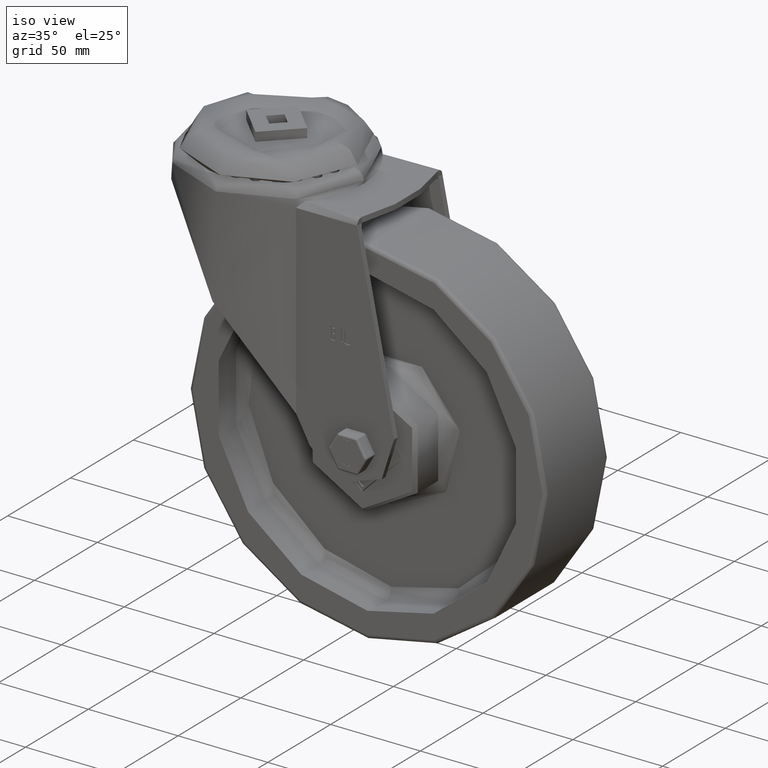
[diagram: clean part render]
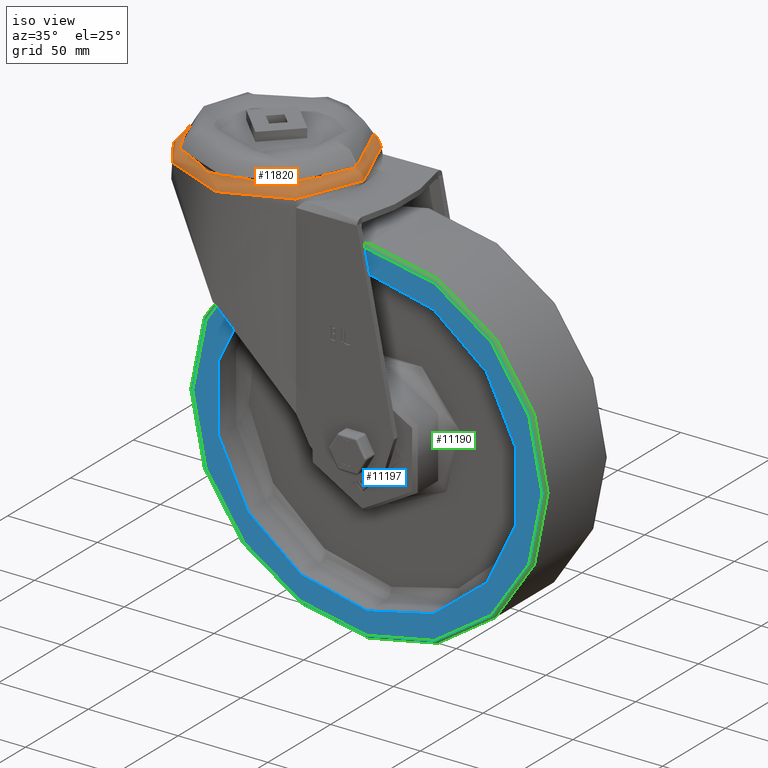
[diagram: same view with three faces highlighted in distinct colors, each labeled with its STEP entity id]
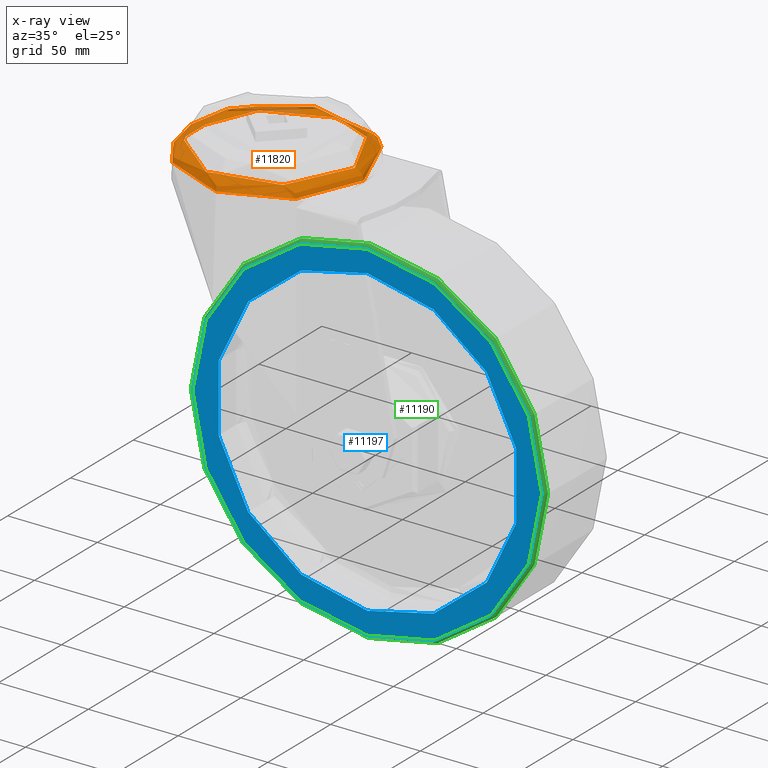
[diagram: x-ray of the same camera — body ghosted, the three highlighted faces saturated]
A machine part, iso view with three faces highlighted in distinct colors.
The next image is the same camera in x-ray (body ghosted, the three faces saturated) — at least one of them is partly hidden behind the body in this view.
Their STEP definitions:

[orange] entity #11820 — the highlighted toroidal blend (fillet) surface has major radius 43.5 mm and minor (blend) radius 5 mm.
#1678=TOROIDAL_SURFACE('',#13038,43.5,5.);
#2312=FACE_OUTER_BOUND('',#3128,.T.);
#3128=EDGE_LOOP('',(#10817,#10818,#10819,#10820));
#4999=CIRCLE('',#13028,48.5);
#5004=CIRCLE('',#13039,5.);
#5005=CIRCLE('',#13040,43.5);
#6053=VERTEX_POINT('',#27925);
#6060=VERTEX_POINT('',#27962);
#7649=EDGE_CURVE('',#6053,#6053,#4999,.T.);
#7663=EDGE_CURVE('',#6053,#6060,#5004,.T.);
#7664=EDGE_CURVE('',#6060,#6060,#5005,.T.);
#10817=ORIENTED_EDGE('',*,*,#7649,.T.);
#10818=ORIENTED_EDGE('',*,*,#7663,.T.);
#10819=ORIENTED_EDGE('',*,*,#7664,.T.);
#10820=ORIENTED_EDGE('',*,*,#7663,.F.);
#11820=ADVANCED_FACE('',(#2312),#1678,.T.);
#13028=AXIS2_PLACEMENT_3D('',#27927,#15654,#15655);
#13038=AXIS2_PLACEMENT_3D('',#27961,#15682,#15683);
#13039=AXIS2_PLACEMENT_3D('',#27963,#15684,#15685);
#13040=AXIS2_PLACEMENT_3D('',#27964,#15686,#15687);
#15654=DIRECTION('center_axis',(0.,0.,1.));
#15655=DIRECTION('ref_axis',(-1.,0.,0.));
#15682=DIRECTION('center_axis',(0.,0.,-1.));
#15683=DIRECTION('ref_axis',(-1.,0.,0.));
#15684=DIRECTION('center_axis',(-1.22464679914735E-16,-1.,0.));
#15685=DIRECTION('ref_axis',(1.,-1.22464679914735E-16,0.));
#15686=DIRECTION('center_axis',(0.,0.,-1.));
#15687=DIRECTION('ref_axis',(-1.,0.,0.));
#27925=CARTESIAN_POINT('',(48.5,5.93953697586466E-15,-6.));
#27927=CARTESIAN_POINT('Origin',(0.,0.,-6.));
#27961=CARTESIAN_POINT('Origin',(0.,0.,-6.));
#27962=CARTESIAN_POINT('',(43.5,-5.32721357629098E-15,-1.));
#27963=CARTESIAN_POINT('Origin',(43.5,-5.32721357629099E-15,-6.));
#27964=CARTESIAN_POINT('Origin',(0.,0.,-1.));

[blue] entity #11197 — the highlighted planar face has unit normal (0, -1, 0).
#1257=FACE_BOUND('',#2373,.T.);
#1399=PLANE('',#12100);
#1689=FACE_OUTER_BOUND('',#2372,.T.);
#2372=EDGE_LOOP('',(#7778));
#2373=EDGE_LOOP('',(#7779));
#4618=CIRCLE('',#12082,85.);
#4619=CIRCLE('',#12084,97.3622245668067);
#5020=VERTEX_POINT('',#15871);
#5021=VERTEX_POINT('',#15875);
#6110=EDGE_CURVE('',#5020,#5020,#4618,.T.);
#6111=EDGE_CURVE('',#5021,#5021,#4619,.T.);
#7778=ORIENTED_EDGE('',*,*,#6111,.T.);
#7779=ORIENTED_EDGE('',*,*,#6110,.F.);
#11197=ADVANCED_FACE('',(#1689,#1257),#1399,.T.);
#12082=AXIS2_PLACEMENT_3D('',#15873,#13113,#13114);
#12084=AXIS2_PLACEMENT_3D('',#15876,#13117,#13118);
#12100=AXIS2_PLACEMENT_3D('',#15928,#13151,#13152);
#13113=DIRECTION('center_axis',(0.,-1.,0.));
#13114=DIRECTION('ref_axis',(0.,0.,1.));
#13117=DIRECTION('center_axis',(0.,-1.,0.));
#13118=DIRECTION('ref_axis',(0.,0.,1.));
#13151=DIRECTION('center_axis',(0.,-1.,0.));
#13152=DIRECTION('ref_axis',(0.,0.,1.));
#15871=CARTESIAN_POINT('',(-1.04094977927525E-14,-25.,-85.));
#15873=CARTESIAN_POINT('Origin',(0.,-25.,0.));
#15875=CARTESIAN_POINT('',(0.,-25.,97.3622245668067));
#15876=CARTESIAN_POINT('Origin',(0.,-25.,0.));
#15928=CARTESIAN_POINT('Origin',(0.,-25.,91.1811122834033));

[green] entity #11190 — the highlighted toroidal blend (fillet) surface has major radius 97.3622 mm and minor (blend) radius 2 mm.
#1660=TOROIDAL_SURFACE('',#12083,97.3622245668067,2.0000000000001);
#1682=FACE_OUTER_BOUND('',#2363,.T.);
#2363=EDGE_LOOP('',(#7754,#7755,#7756,#7757));
#4619=CIRCLE('',#12084,97.3622245668067);
#4620=CIRCLE('',#12085,2.0000000000001);
#4621=CIRCLE('',#12086,99.3591512588263);
#5021=VERTEX_POINT('',#15875);
#5022=VERTEX_POINT('',#15877);
#6111=EDGE_CURVE('',#5021,#5021,#4619,.T.);
#6112=EDGE_CURVE('',#5021,#5022,#4620,.T.);
#6113=EDGE_CURVE('',#5022,#5022,#4621,.T.);
#7754=ORIENTED_EDGE('',*,*,#6111,.F.);
#7755=ORIENTED_EDGE('',*,*,#6112,.T.);
#7756=ORIENTED_EDGE('',*,*,#6113,.T.);
#7757=ORIENTED_EDGE('',*,*,#6112,.F.);
#11190=ADVANCED_FACE('',(#1682),#1660,.T.);
#12083=AXIS2_PLACEMENT_3D('',#15874,#13115,#13116);
#12084=AXIS2_PLACEMENT_3D('',#15876,#13117,#13118);
#12085=AXIS2_PLACEMENT_3D('',#15878,#13119,#13120);
#12086=AXIS2_PLACEMENT_3D('',#15879,#13121,#13122);
#13115=DIRECTION('center_axis',(0.,-1.,0.));
#13116=DIRECTION('ref_axis',(0.,0.,-1.));
#13117=DIRECTION('center_axis',(0.,-1.,0.));
#13118=DIRECTION('ref_axis',(0.,0.,1.));
#13119=DIRECTION('center_axis',(-1.,0.,-1.22464679914735E-16));
#13120=DIRECTION('ref_axis',(-1.22464679914735E-16,0.,1.));
#13121=DIRECTION('center_axis',(0.,-1.,0.));
#13122=DIRECTION('ref_axis',(0.,0.,1.));
#15874=CARTESIAN_POINT('Origin',(0.,-22.9999999999999,0.));
#15875=CARTESIAN_POINT('',(0.,-25.,97.3622245668067));
#15876=CARTESIAN_POINT('Origin',(0.,-25.,0.));
#15877=CARTESIAN_POINT('',(0.,-23.1108322457584,99.3591512588263));
#15878=CARTESIAN_POINT('Origin',(-1.19234336673606E-14,-22.9999999999999,
97.3622245668067));
#15879=CARTESIAN_POINT('Origin',(0.,-23.1108322457584,0.));